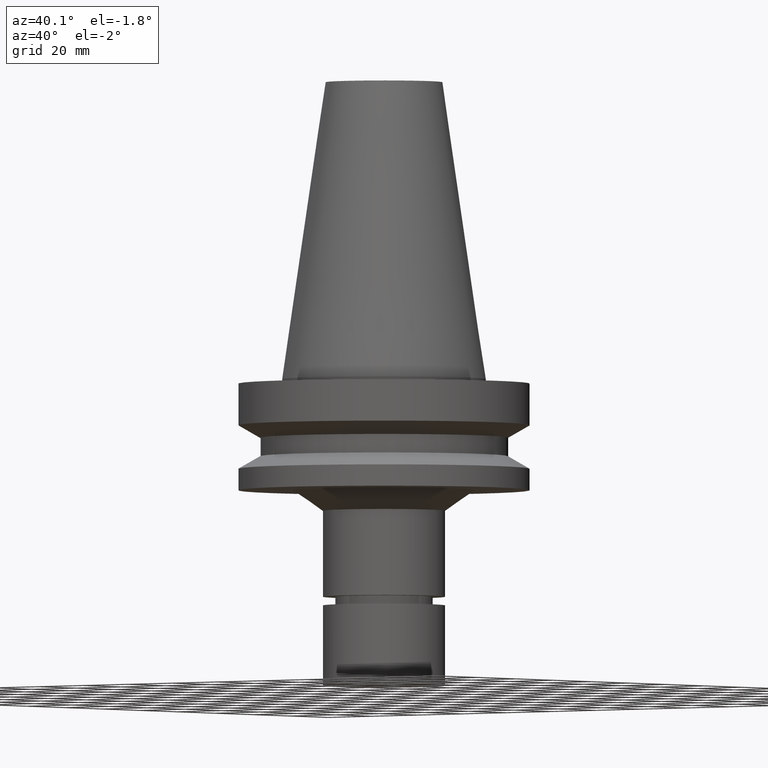
[diagram: clean part render]
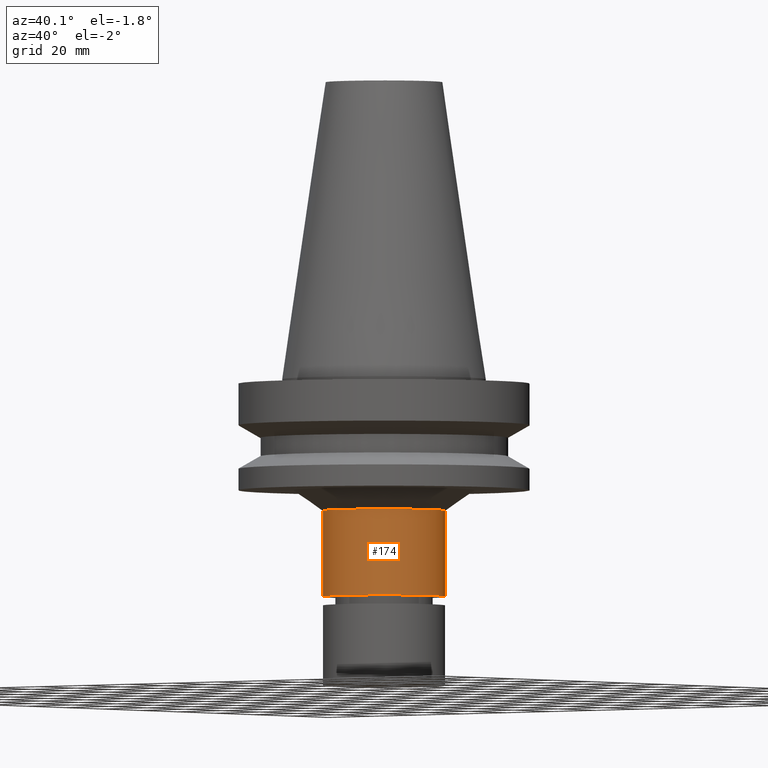
[diagram: same view with one face highlighted and labeled with its STEP entity id]
A machine part, auxiliary view. The second image highlights one B-rep face of the part: STEP entity #174.
In plain terms, the highlighted cylindrical surface (bore or boss wall) has radius 21 mm, axis along (-0, 0, 1).
Its self-contained STEP definition (entity closure, byte-faithful):
#85=EDGE_CURVE('Unnamed[1]',#217,#217,#218,.T.);
#135=EDGE_CURVE('Unnamed[1]',#293,#293,#294,.T.);
#174=ADVANCED_FACE('Unnamed[1]',(#351,#352),#353,.T.);
#217=VERTEX_POINT('',#397);
#218=CIRCLE('',#398,21.0000000000002);
#293=VERTEX_POINT('',#494);
#294=CIRCLE('',#495,20.9999999999967);
#351=FACE_BOUND('',#564,.T.);
#352=FACE_BOUND('',#565,.T.);
#353=CYLINDRICAL_SURFACE('',#566,20.9999999999985);
#397=CARTESIAN_POINT('',(4.56180932682389E-015,21.0000000000003,-74.4999999999999));
#398=AXIS2_PLACEMENT_3D('',#598,#599,#600);
#494=CARTESIAN_POINT('',(2.75941339741663E-015,20.9999999999967,-45.0646406676249));
#495=AXIS2_PLACEMENT_3D('',#682,#683,#684);
#564=EDGE_LOOP('',(#744));
#565=EDGE_LOOP('',(#745));
#566=AXIS2_PLACEMENT_3D('',#746,#747,#748);
#598=CARTESIAN_POINT('',(4.56180932682389E-015,1.2985687619165E-014,-74.4999999999999));
#599=DIRECTION('',(-6.12323399573677E-017,1.40684069939029E-019,1.0));
#600=DIRECTION('',(-4.81853831597193E-033,1.0,-1.40684069939029E-019));
#682=CARTESIAN_POINT('',(2.75941339741663E-015,1.2989828705316E-014,-45.0646406676249));
#683=DIRECTION('',(-6.12323399573677E-017,1.40684069939015E-019,1.0));
#684=DIRECTION('',(-4.81853831597193E-033,1.0,-1.40684069939015E-019));
#744=ORIENTED_EDGE('',*,*,#135,.F.);
#745=ORIENTED_EDGE('',*,*,#85,.T.);
#746=CARTESIAN_POINT('',(3.66061136212026E-015,1.29877581622405E-014,-59.7823203338124));
#747=DIRECTION('',(-6.12323399573677E-017,1.40684069939022E-019,1.0));
#748=DIRECTION('',(-4.81853831597193E-033,1.0,-1.40684069939022E-019));